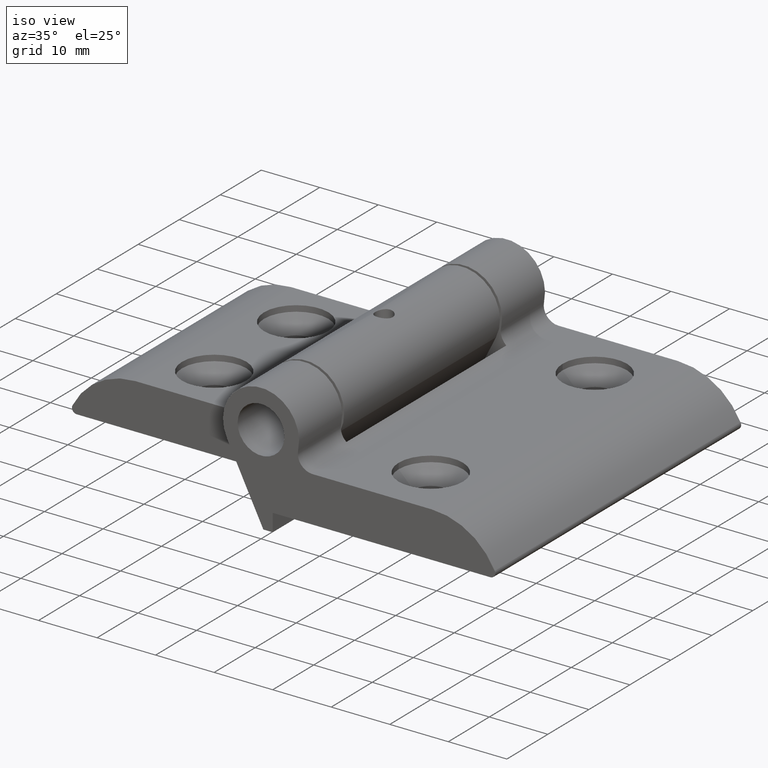
[diagram: clean part render]
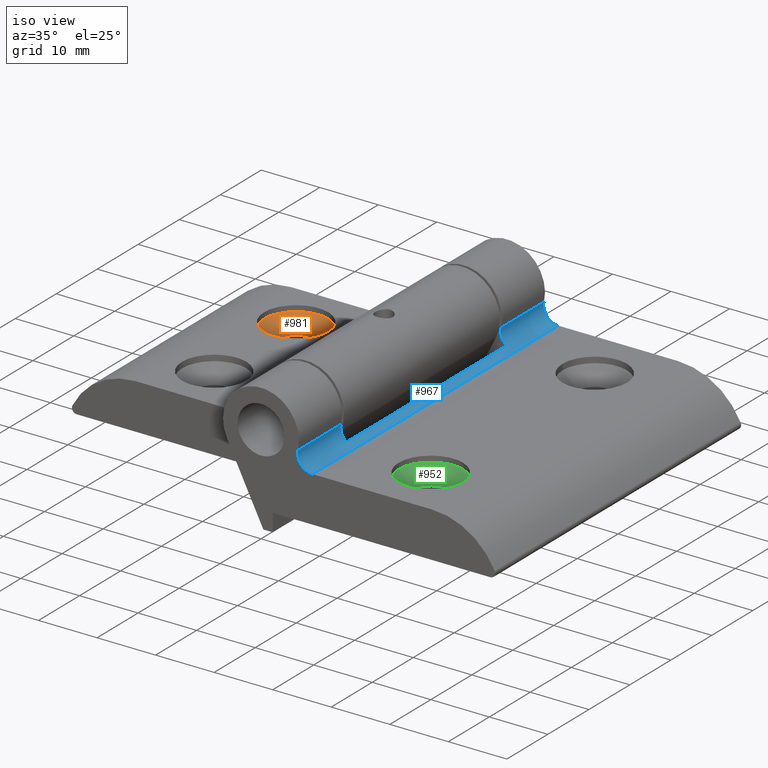
[diagram: same view with three faces highlighted in distinct colors, each labeled with its STEP entity id]
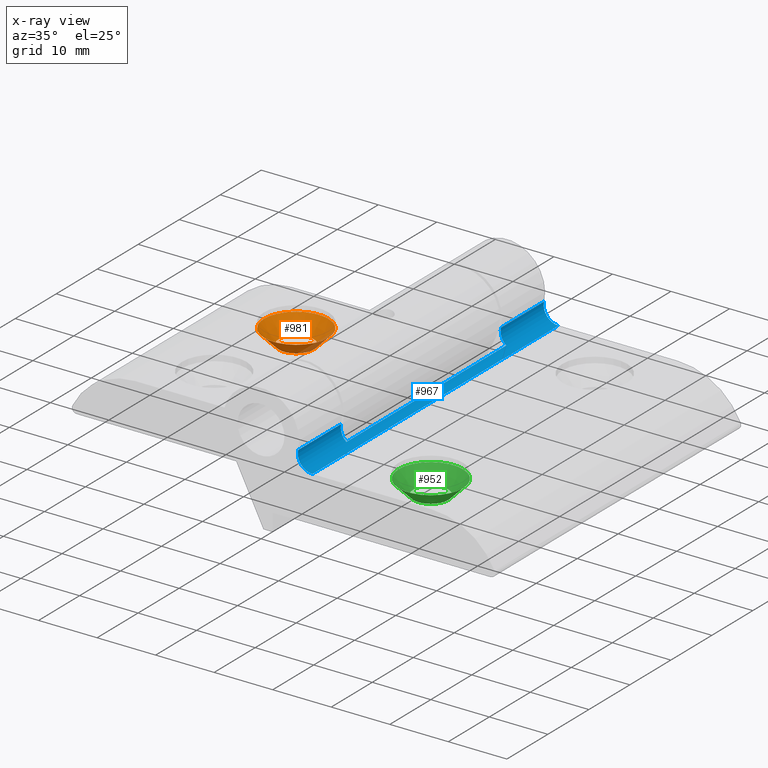
[diagram: x-ray of the same camera — body ghosted, the three highlighted faces saturated]
A machine part, iso view with three faces highlighted in distinct colors.
The next image is the same camera in x-ray (body ghosted, the three faces saturated) — at least one of them is partly hidden behind the body in this view.
Their STEP definitions:

[orange] entity #981 — the highlighted conical surface has half-angle 45 deg.
#138=FACE_OUTER_BOUND('',#192,.T.);
#192=EDGE_LOOP('',(#845,#846,#847,#848,#849,#850));
#267=LINE('',#1809,#336);
#336=VECTOR('',#1362,4.25);
#391=CIRCLE('',#1130,5.5);
#392=CIRCLE('',#1131,3.);
#393=CIRCLE('',#1132,3.);
#394=CIRCLE('',#1133,5.5);
#483=VERTEX_POINT('',#1805);
#484=VERTEX_POINT('',#1806);
#485=VERTEX_POINT('',#1808);
#486=VERTEX_POINT('',#1810);
#614=EDGE_CURVE('',#483,#484,#391,.T.);
#615=EDGE_CURVE('',#484,#485,#267,.T.);
#616=EDGE_CURVE('',#486,#485,#392,.T.);
#617=EDGE_CURVE('',#485,#486,#393,.T.);
#618=EDGE_CURVE('',#484,#483,#394,.T.);
#845=ORIENTED_EDGE('',*,*,#614,.T.);
#846=ORIENTED_EDGE('',*,*,#615,.T.);
#847=ORIENTED_EDGE('',*,*,#616,.F.);
#848=ORIENTED_EDGE('',*,*,#617,.F.);
#849=ORIENTED_EDGE('',*,*,#615,.F.);
#850=ORIENTED_EDGE('',*,*,#618,.T.);
#949=CONICAL_SURFACE('',#1129,4.25,0.785398163397448);
#981=ADVANCED_FACE('',(#138),#949,.F.);
#1129=AXIS2_PLACEMENT_3D('',#1804,#1358,#1359);
#1130=AXIS2_PLACEMENT_3D('',#1807,#1360,#1361);
#1131=AXIS2_PLACEMENT_3D('',#1811,#1363,#1364);
#1132=AXIS2_PLACEMENT_3D('',#1812,#1365,#1366);
#1133=AXIS2_PLACEMENT_3D('',#1813,#1367,#1368);
#1358=DIRECTION('center_axis',(1.087908341283E-16,0.,1.));
#1359=DIRECTION('ref_axis',(1.,0.,-1.087908341283E-16));
#1360=DIRECTION('center_axis',(1.087908341283E-16,0.,1.));
#1361=DIRECTION('ref_axis',(1.,0.,-1.087908341283E-16));
#1362=DIRECTION('',(0.707106781186547,8.65956056235493E-17,-0.707106781186548));
#1363=DIRECTION('center_axis',(1.087908341283E-16,0.,1.));
#1364=DIRECTION('ref_axis',(1.,0.,-1.087908341283E-16));
#1365=DIRECTION('center_axis',(1.087908341283E-16,0.,1.));
#1366=DIRECTION('ref_axis',(1.,0.,-1.087908341283E-16));
#1367=DIRECTION('center_axis',(1.087908341283E-16,0.,1.));
#1368=DIRECTION('ref_axis',(1.,0.,-1.087908341283E-16));
#1804=CARTESIAN_POINT('Origin',(22.,-10.,-6.75));
#1805=CARTESIAN_POINT('',(27.5,-10.,-5.5));
#1806=CARTESIAN_POINT('',(16.5,-10.,-5.5));
#1807=CARTESIAN_POINT('Origin',(22.,-10.,-5.5));
#1808=CARTESIAN_POINT('',(19.,-10.,-8.00000000000001));
#1809=CARTESIAN_POINT('',(17.75,-10.,-6.75));
#1810=CARTESIAN_POINT('',(25.,-10.,-8.00000000000001));
#1811=CARTESIAN_POINT('Origin',(22.,-10.,-8.));
#1812=CARTESIAN_POINT('Origin',(22.,-10.,-8.));
#1813=CARTESIAN_POINT('Origin',(22.,-10.,-5.5));

[blue] entity #967 — the highlighted cylindrical surface (edge-blend (fillet) strip) has radius 2.5 mm, axis along (0, 1, 0).
#93=CYLINDRICAL_SURFACE('',#1100,2.5);
#124=FACE_OUTER_BOUND('',#172,.T.);
#172=EDGE_LOOP('',(#744,#745,#746,#747,#748,#749,#750,#751));
#228=LINE('',#1509,#297);
#248=LINE('',#1558,#317);
#249=LINE('',#1561,#318);
#250=LINE('',#1567,#319);
#297=VECTOR('',#1231,10.);
#317=VECTOR('',#1277,10.);
#318=VECTOR('',#1280,10.);
#319=VECTOR('',#1287,10.);
#368=CIRCLE('',#1080,2.5);
#372=CIRCLE('',#1086,2.5);
#378=CIRCLE('',#1101,2.5);
#379=CIRCLE('',#1102,2.5);
#423=VERTEX_POINT('',#1487);
#424=VERTEX_POINT('',#1488);
#433=VERTEX_POINT('',#1508);
#434=VERTEX_POINT('',#1512);
#449=VERTEX_POINT('',#1556);
#450=VERTEX_POINT('',#1560);
#451=VERTEX_POINT('',#1564);
#452=VERTEX_POINT('',#1566);
#531=EDGE_CURVE('',#423,#424,#368,.T.);
#541=EDGE_CURVE('',#433,#423,#228,.T.);
#543=EDGE_CURVE('',#434,#433,#372,.T.);
#566=EDGE_CURVE('',#449,#424,#248,.T.);
#567=EDGE_CURVE('',#434,#450,#249,.T.);
#569=EDGE_CURVE('',#451,#449,#378,.T.);
#570=EDGE_CURVE('',#452,#451,#250,.T.);
#571=EDGE_CURVE('',#450,#452,#379,.T.);
#744=ORIENTED_EDGE('',*,*,#543,.T.);
#745=ORIENTED_EDGE('',*,*,#541,.T.);
#746=ORIENTED_EDGE('',*,*,#531,.T.);
#747=ORIENTED_EDGE('',*,*,#566,.F.);
#748=ORIENTED_EDGE('',*,*,#569,.F.);
#749=ORIENTED_EDGE('',*,*,#570,.F.);
#750=ORIENTED_EDGE('',*,*,#571,.F.);
#751=ORIENTED_EDGE('',*,*,#567,.F.);
#967=ADVANCED_FACE('',(#124),#93,.F.);
#1080=AXIS2_PLACEMENT_3D('',#1489,#1215,#1216);
#1086=AXIS2_PLACEMENT_3D('',#1513,#1235,#1236);
#1100=AXIS2_PLACEMENT_3D('',#1563,#1283,#1284);
#1101=AXIS2_PLACEMENT_3D('',#1565,#1285,#1286);
#1102=AXIS2_PLACEMENT_3D('',#1568,#1288,#1289);
#1215=DIRECTION('center_axis',(-9.14356323852182E-17,1.,-3.21321186532551E-17));
#1216=DIRECTION('ref_axis',(0.,0.,1.));
#1231=DIRECTION('',(0.,-1.,0.));
#1235=DIRECTION('center_axis',(9.14356323852182E-17,-1.,3.21321186532551E-17));
#1236=DIRECTION('ref_axis',(0.,0.,1.));
#1277=DIRECTION('',(0.,1.,0.));
#1280=DIRECTION('',(0.,1.,0.));
#1283=DIRECTION('center_axis',(0.,1.,0.));
#1284=DIRECTION('ref_axis',(0.,0.,1.));
#1285=DIRECTION('center_axis',(0.,1.,0.));
#1286=DIRECTION('ref_axis',(0.,0.,1.));
#1287=DIRECTION('',(0.,-1.,0.));
#1288=DIRECTION('center_axis',(0.,-1.,0.));
#1289=DIRECTION('ref_axis',(0.,0.,1.));
#1487=CARTESIAN_POINT('',(7.23266846303572,-19.5,-3.96756785949396));
#1488=CARTESIAN_POINT('',(6.3374742797832,-19.5,-1.44444444444445));
#1489=CARTESIAN_POINT('Origin',(8.77496438739212,-19.5,-2.));
#1508=CARTESIAN_POINT('',(7.23266846303572,19.5,-3.96756785949396));
#1509=CARTESIAN_POINT('',(7.23266846303572,0.,-3.96756785949396));
#1512=CARTESIAN_POINT('',(6.3374742797832,19.5,-1.44444444444445));
#1513=CARTESIAN_POINT('Origin',(8.77496438739212,19.5,-2.));
#1556=CARTESIAN_POINT('',(6.3374742797832,-30.,-1.44444444444445));
#1558=CARTESIAN_POINT('',(6.3374742797832,0.,-1.44444444444445));
#1560=CARTESIAN_POINT('',(6.3374742797832,30.,-1.44444444444445));
#1561=CARTESIAN_POINT('',(6.3374742797832,0.,-1.44444444444445));
#1563=CARTESIAN_POINT('Origin',(8.77496438739212,0.,-2.));
#1564=CARTESIAN_POINT('',(8.77496438739212,-30.,-4.5));
#1565=CARTESIAN_POINT('Origin',(8.77496438739212,-30.,-2.));
#1566=CARTESIAN_POINT('',(8.77496438739212,30.,-4.5));
#1567=CARTESIAN_POINT('',(8.77496438739212,0.,-4.5));
#1568=CARTESIAN_POINT('Origin',(8.77496438739212,30.,-2.));

[green] entity #952 — the highlighted conical surface has half-angle 45 deg.
#109=FACE_OUTER_BOUND('',#155,.T.);
#155=EDGE_LOOP('',(#667,#668,#669,#670,#671,#672));
#218=LINE('',#1465,#287);
#287=VECTOR('',#1187,4.25);
#359=CIRCLE('',#1067,5.5);
#360=CIRCLE('',#1068,3.);
#361=CIRCLE('',#1069,3.);
#362=CIRCLE('',#1070,5.5);
#414=VERTEX_POINT('',#1461);
#415=VERTEX_POINT('',#1462);
#416=VERTEX_POINT('',#1464);
#417=VERTEX_POINT('',#1466);
#518=EDGE_CURVE('',#414,#415,#359,.T.);
#519=EDGE_CURVE('',#415,#416,#218,.T.);
#520=EDGE_CURVE('',#417,#416,#360,.T.);
#521=EDGE_CURVE('',#416,#417,#361,.T.);
#522=EDGE_CURVE('',#415,#414,#362,.T.);
#667=ORIENTED_EDGE('',*,*,#518,.T.);
#668=ORIENTED_EDGE('',*,*,#519,.T.);
#669=ORIENTED_EDGE('',*,*,#520,.F.);
#670=ORIENTED_EDGE('',*,*,#521,.F.);
#671=ORIENTED_EDGE('',*,*,#519,.F.);
#672=ORIENTED_EDGE('',*,*,#522,.T.);
#947=CONICAL_SURFACE('',#1066,4.25,0.785398163397448);
#952=ADVANCED_FACE('',(#109),#947,.F.);
#1066=AXIS2_PLACEMENT_3D('',#1460,#1183,#1184);
#1067=AXIS2_PLACEMENT_3D('',#1463,#1185,#1186);
#1068=AXIS2_PLACEMENT_3D('',#1467,#1188,#1189);
#1069=AXIS2_PLACEMENT_3D('',#1468,#1190,#1191);
#1070=AXIS2_PLACEMENT_3D('',#1469,#1192,#1193);
#1183=DIRECTION('center_axis',(1.087908341283E-16,0.,1.));
#1184=DIRECTION('ref_axis',(1.,0.,-1.087908341283E-16));
#1185=DIRECTION('center_axis',(1.087908341283E-16,0.,1.));
#1186=DIRECTION('ref_axis',(1.,0.,-1.087908341283E-16));
#1187=DIRECTION('',(0.707106781186547,8.65956056235493E-17,-0.707106781186548));
#1188=DIRECTION('center_axis',(1.087908341283E-16,0.,1.));
#1189=DIRECTION('ref_axis',(1.,0.,-1.087908341283E-16));
#1190=DIRECTION('center_axis',(1.087908341283E-16,0.,1.));
#1191=DIRECTION('ref_axis',(1.,0.,-1.087908341283E-16));
#1192=DIRECTION('center_axis',(1.087908341283E-16,0.,1.));
#1193=DIRECTION('ref_axis',(1.,0.,-1.087908341283E-16));
#1460=CARTESIAN_POINT('Origin',(22.,-20.,-6.75));
#1461=CARTESIAN_POINT('',(27.5,-20.,-5.5));
#1462=CARTESIAN_POINT('',(16.5,-20.,-5.5));
#1463=CARTESIAN_POINT('Origin',(22.,-20.,-5.5));
#1464=CARTESIAN_POINT('',(19.,-20.,-8.00000000000001));
#1465=CARTESIAN_POINT('',(17.75,-20.,-6.75));
#1466=CARTESIAN_POINT('',(25.,-20.,-8.00000000000001));
#1467=CARTESIAN_POINT('Origin',(22.,-20.,-8.));
#1468=CARTESIAN_POINT('Origin',(22.,-20.,-8.));
#1469=CARTESIAN_POINT('Origin',(22.,-20.,-5.5));